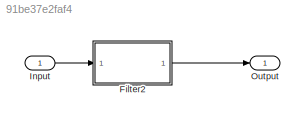
MODEL slx_91be37e2faf4
KIND model
CONFIG AbsTol = auto
CONFIG EnableMultiTasking = off
CONFIG FixedStep = auto
CONFIG MaxStep = auto
CONFIG MinStep = auto
CONFIG RelTol = 1e-3
CONFIG SampleTimeConstraint = Unconstrained
CONFIG SolverName = VariableStepAuto
CONFIG StartTime = 0.0
CONFIG StopTime = 10.0
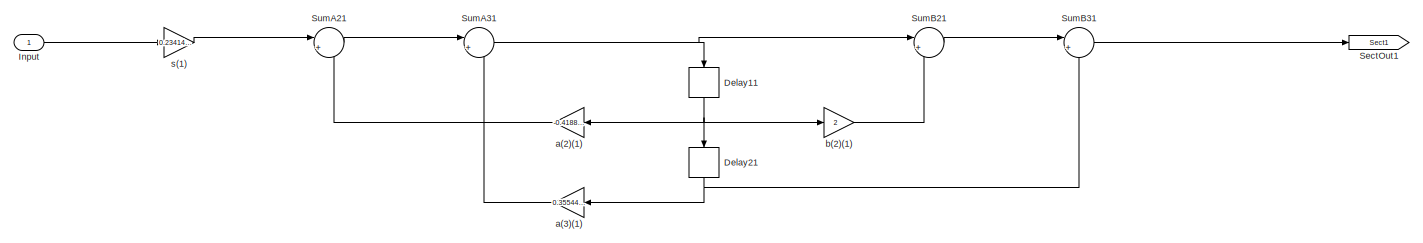
[diagram: Filter2 - part 1/2, left side, full height]
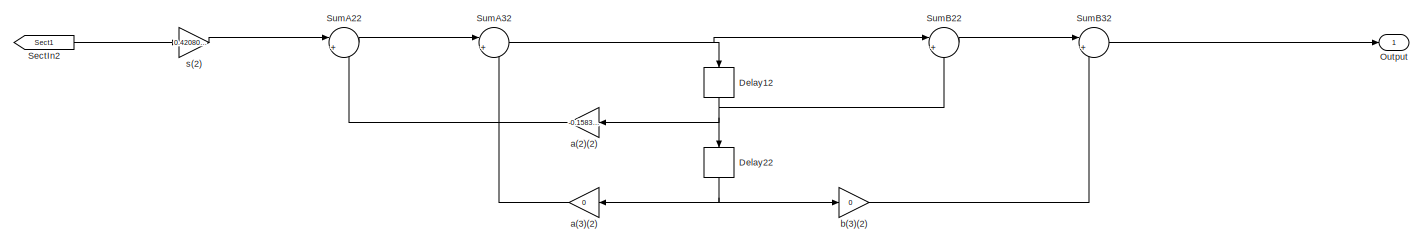
[diagram: Filter2 - part 2/2, right side, full height]
BLOCK [SubSystem] Filter2
  ErrorFcn = dspFilterRealizedInBasicElemsAlgLoopErrFcnCallback
  Ports = [1, 1]
  RequestExecContextInheritance = off
  Tag = FilterWizardSubSystem
  UserDataPersistent = on
BLOCK [Delay] Filter2/Delay11
  DelayLength = 1
  InitialCondition = 0
  InputPortMap = u0
  NameLocation = right
  Ports = [1, 1]
BLOCK [Delay] Filter2/Delay12
  DelayLength = 1
  InitialCondition = 0
  InputPortMap = u0
  NameLocation = right
  Ports = [1, 1]
BLOCK [Delay] Filter2/Delay21
  DelayLength = 1
  InitialCondition = 0
  InputPortMap = u0
  NameLocation = right
  Ports = [1, 1]
BLOCK [Delay] Filter2/Delay22
  DelayLength = 1
  InitialCondition = 0
  InputPortMap = u0
  NameLocation = right
  Ports = [1, 1]
BLOCK [Inport] Filter2/Input
BLOCK [Outport] Filter2/Output
BLOCK [From] Filter2/SectIn2
  GotoTag = Sect1
BLOCK [Goto] Filter2/SectOut1
  GotoTag = Sect1
BLOCK [Sum] Filter2/SumA21
  Inputs = |+-
  OutDataTypeStr = Inherit: Same as first input
  Ports = [2, 1]
  RndMeth = Nearest
  SaturateOnIntegerOverflow = on
BLOCK [Sum] Filter2/SumA22
  Inputs = |+-
  OutDataTypeStr = Inherit: Same as first input
  Ports = [2, 1]
  RndMeth = Nearest
  SaturateOnIntegerOverflow = on
BLOCK [Sum] Filter2/SumA31
  Inputs = |+-
  OutDataTypeStr = Inherit: Same as first input
  Ports = [2, 1]
  RndMeth = Nearest
  SaturateOnIntegerOverflow = on
BLOCK [Sum] Filter2/SumA32
  Inputs = |+-
  OutDataTypeStr = Inherit: Same as first input
  Ports = [2, 1]
  RndMeth = Nearest
  SaturateOnIntegerOverflow = on
BLOCK [Sum] Filter2/SumB21
  Inputs = |++
  OutDataTypeStr = Inherit: Same as first input
  Ports = [2, 1]
  RndMeth = Nearest
  SaturateOnIntegerOverflow = on
BLOCK [Sum] Filter2/SumB22
  Inputs = |++
  OutDataTypeStr = Inherit: Same as first input
  Ports = [2, 1]
  RndMeth = Nearest
  SaturateOnIntegerOverflow = on
BLOCK [Sum] Filter2/SumB31
  Inputs = |++
  OutDataTypeStr = Inherit: Same as first input
  Ports = [2, 1]
  RndMeth = Nearest
  SaturateOnIntegerOverflow = on
BLOCK [Sum] Filter2/SumB32
  Inputs = |++
  OutDataTypeStr = Inherit: Same as first input
  Ports = [2, 1]
  RndMeth = Nearest
  SaturateOnIntegerOverflow = on
BLOCK [Gain] Filter2/a(2)(1)
  Gain = -0.418856084481766477
  OutDataTypeStr = Inherit: Same as input
  ParamDataTypeStr = double
  RndMeth = Nearest
  SaturateOnIntegerOverflow = on
BLOCK [Gain] Filter2/a(2)(2)
  Gain = -0.158384440324536357
  OutDataTypeStr = Inherit: Same as input
  ParamDataTypeStr = double
  RndMeth = Nearest
  SaturateOnIntegerOverflow = on
BLOCK [Gain] Filter2/a(3)(1)
  Gain = 0.355446762172390629
  OutDataTypeStr = Inherit: Same as input
  ParamDataTypeStr = double
  RndMeth = Nearest
  SaturateOnIntegerOverflow = on
BLOCK [Gain] Filter2/a(3)(2)
  Gain = 0
  OutDataTypeStr = Inherit: Same as input
  ParamDataTypeStr = double
  RndMeth = Nearest
  SaturateOnIntegerOverflow = on
BLOCK [Gain] Filter2/b(2)(1)
  Gain = 2
  OutDataTypeStr = Inherit: Same as input
  ParamDataTypeStr = double
  RndMeth = Nearest
  SaturateOnIntegerOverflow = on
BLOCK [Gain] Filter2/b(3)(2)
  Gain = 0
  OutDataTypeStr = Inherit: Same as input
  ParamDataTypeStr = double
  RndMeth = Nearest
  SaturateOnIntegerOverflow = on
BLOCK [Gain] Filter2/s(1)
  Gain = 0.234147669422656052
  OutDataTypeStr = Inherit: Same as input
  ParamDataTypeStr = double
  RndMeth = Nearest
  SaturateOnIntegerOverflow = on
BLOCK [Gain] Filter2/s(2)
  Gain = 0.420807779837731821
  OutDataTypeStr = Inherit: Same as input
  ParamDataTypeStr = double
  RndMeth = Nearest
  SaturateOnIntegerOverflow = on
BLOCK [Inport] Input
BLOCK [Outport] Output
NET Filter2/Delay11:1 -> Filter2/Delay21:1, Filter2/a(2)(1):1, Filter2/b(2)(1):1
NET Filter2/Delay12:1 -> Filter2/Delay22:1, Filter2/SumB22:2, Filter2/a(2)(2):1
NET Filter2/Delay21:1 -> Filter2/SumB31:2, Filter2/a(3)(1):1
NET Filter2/Delay22:1 -> Filter2/a(3)(2):1, Filter2/b(3)(2):1
LINE Filter2/Input:1 -> Filter2/s(1):1
LINE Filter2/SectIn2:1 -> Filter2/s(2):1
LINE Filter2/SumA21:1 -> Filter2/SumA31:1
LINE Filter2/SumA22:1 -> Filter2/SumA32:1
NET Filter2/SumA31:1 -> Filter2/Delay11:1, Filter2/SumB21:1
NET Filter2/SumA32:1 -> Filter2/Delay12:1, Filter2/SumB22:1
LINE Filter2/SumB21:1 -> Filter2/SumB31:1
LINE Filter2/SumB22:1 -> Filter2/SumB32:1
LINE Filter2/SumB31:1 -> Filter2/SectOut1:1
LINE Filter2/SumB32:1 -> Filter2/Output:1
LINE Filter2/a(2)(1):1 -> Filter2/SumA21:2
LINE Filter2/a(2)(2):1 -> Filter2/SumA22:2
LINE Filter2/a(3)(1):1 -> Filter2/SumA31:2
LINE Filter2/a(3)(2):1 -> Filter2/SumA32:2
LINE Filter2/b(2)(1):1 -> Filter2/SumB21:2
LINE Filter2/b(3)(2):1 -> Filter2/SumB32:2
LINE Filter2/s(1):1 -> Filter2/SumA21:1
LINE Filter2/s(2):1 -> Filter2/SumA22:1
LINE Filter2:1 -> Output:1
LINE Input:1 -> Filter2:1
note: NET lines group one-source signal fan-out (src -> all destinations, sorted); 1:1 wires keep LINE
